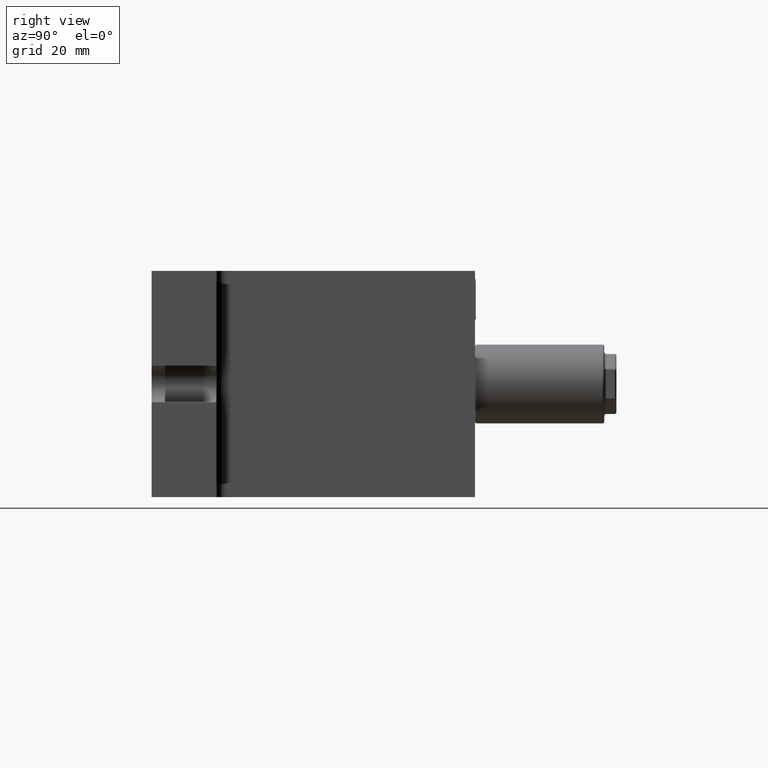
[diagram: clean part render]
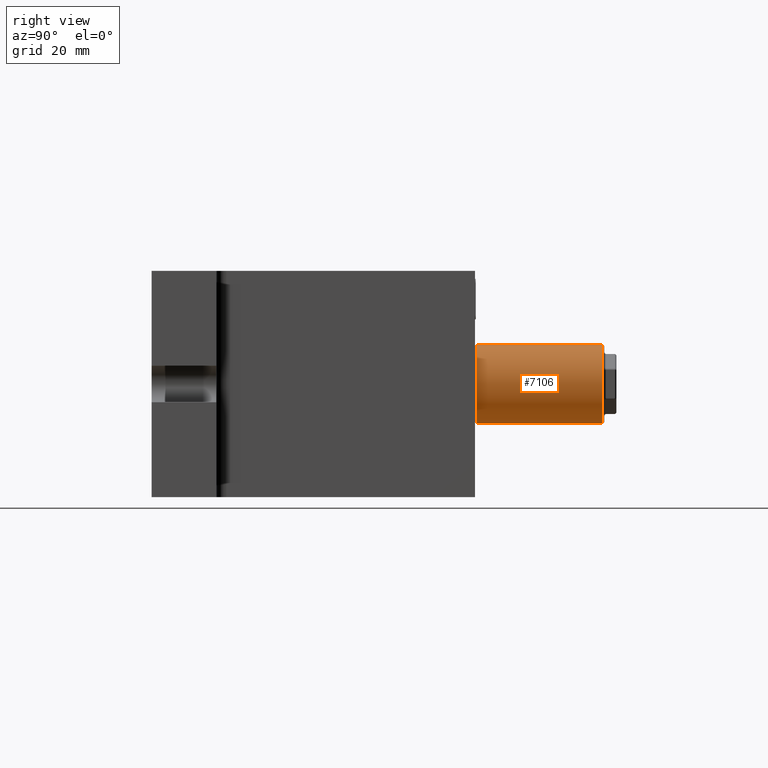
[diagram: same view with one face highlighted and labeled with its STEP entity id]
A machine part, right view. The second image highlights one B-rep face of the part: STEP entity #7106.
In plain terms, the highlighted cylindrical surface (partial cylindrical patch) has radius 9.75 mm, axis along (-0, -1, -0).
Its self-contained STEP definition (entity closure, byte-faithful):
#18 = VERTEX_POINT ( 'NONE', #2613 ) ;
#153 = DIRECTION ( 'NONE',  ( -5.959270968386779200E-017, -1.000000000000000000, -1.089523766022739900E-016 ) ) ;
#280 = EDGE_CURVE ( 'NONE', #18183, #12686, #14947, .T. ) ;
#324 = CARTESIAN_POINT ( 'NONE',  ( 25.00000000000000000, 64.00000000000000000, -9.750000000000000000 ) ) ;
#397 = CARTESIAN_POINT ( 'NONE',  ( 25.00000000000000000, 71.50000000000000000, 1.387778780781446000E-014 ) ) ;
#900 = DIRECTION ( 'NONE',  ( -5.959270968386779200E-017, -1.000000000000000000, -1.089523766022739900E-016 ) ) ;
#1024 = LINE ( 'NONE', #16780, #13079 ) ;
#1037 = AXIS2_PLACEMENT_3D ( 'NONE', #7697, #1173, #11574 ) ;
#1069 = ORIENTED_EDGE ( 'NONE', *, *, #280, .T. ) ;
#1173 = DIRECTION ( 'NONE',  ( -5.959270968386779200E-017, -1.000000000000000000, -1.089523766022739900E-016 ) ) ;
#1421 = VERTEX_POINT ( 'NONE', #8366 ) ;
#1587 = ORIENTED_EDGE ( 'NONE', *, *, #10957, .F. ) ;
#1618 = VECTOR ( 'NONE', #900, 1000.000000000000000 ) ;
#1631 = FACE_OUTER_BOUND ( 'NONE', #9160, .T. ) ;
#2253 = CARTESIAN_POINT ( 'NONE',  ( 25.00000000000000000, 58.00000000000000000, -9.750000000000000000 ) ) ;
#2419 = CARTESIAN_POINT ( 'NONE',  ( 25.00000000000000000, 72.00000000000000000, 9.750000000000014200 ) ) ;
#2516 = CARTESIAN_POINT ( 'NONE',  ( 25.00000000000000000, 48.00000000000000000, 9.750000000000000000 ) ) ;
#2613 = CARTESIAN_POINT ( 'NONE',  ( 25.00000000000000000, 48.00000000000000000, -9.750000000000000000 ) ) ;
#2877 = CARTESIAN_POINT ( 'NONE',  ( 25.00000000000000000, 66.00000000000000000, 9.750000000000000000 ) ) ;
#3560 = ORIENTED_EDGE ( 'NONE', *, *, #11059, .T. ) ;
#3569 = VECTOR ( 'NONE', #7293, 1000.000000000000000 ) ;
#3899 = VECTOR ( 'NONE', #17322, 1000.000000000000000 ) ;
#3951 = VERTEX_POINT ( 'NONE', #13352 ) ;
#4226 = VERTEX_POINT ( 'NONE', #2877 ) ;
#4452 = DIRECTION ( 'NONE',  ( -5.959270968386779200E-017, -1.000000000000000000, -1.089523766022739900E-016 ) ) ;
#4474 = CIRCLE ( 'NONE', #10943, 9.750000000000000000 ) ;
#4478 = CARTESIAN_POINT ( 'NONE',  ( 25.00000000000000000, 56.00000000000000000, -9.750000000000000000 ) ) ;
#4678 = ORIENTED_EDGE ( 'NONE', *, *, #18699, .F. ) ;
#4775 = ORIENTED_EDGE ( 'NONE', *, *, #7802, .T. ) ;
#5078 = CARTESIAN_POINT ( 'NONE',  ( 25.00000000000000000, 72.00000000000000000, 9.750000000000000000 ) ) ;
#5417 = DIRECTION ( 'NONE',  ( -5.959270968386779200E-017, -1.000000000000000000, -1.089523766022739900E-016 ) ) ;
#5484 = CARTESIAN_POINT ( 'NONE',  ( 24.99999999999999600, 72.00000000000000000, -9.749999999999985800 ) ) ;
#5502 = CARTESIAN_POINT ( 'NONE',  ( 25.00000000000000000, 64.00000000000000000, 9.750000000000000000 ) ) ;
#5519 = VECTOR ( 'NONE', #5417, 1000.000000000000000 ) ;
#5534 = ORIENTED_EDGE ( 'NONE', *, *, #19341, .T. ) ;
#5555 = VECTOR ( 'NONE', #12258, 1000.000000000000000 ) ;
#5669 = CARTESIAN_POINT ( 'NONE',  ( 24.99999999999999600, 72.00000000000000000, -9.749999999999985800 ) ) ;
#5843 = ORIENTED_EDGE ( 'NONE', *, *, #15757, .F. ) ;
#6109 = VECTOR ( 'NONE', #153, 1000.000000000000000 ) ;
#6158 = VERTEX_POINT ( 'NONE', #14401 ) ;
#6605 = LINE ( 'NONE', #20660, #5555 ) ;
#7106 = ADVANCED_FACE ( 'NONE', ( #1631 ), #17383, .T. ) ;
#7128 = VECTOR ( 'NONE', #16739, 1000.000000000000000 ) ;
#7293 = DIRECTION ( 'NONE',  ( 5.959270968386779200E-017, 1.000000000000000000, 1.089523766022739900E-016 ) ) ;
#7375 = LINE ( 'NONE', #9516, #11833 ) ;
#7697 = CARTESIAN_POINT ( 'NONE',  ( 25.00000000000000000, 72.00000000000000000, 1.387778780781446000E-014 ) ) ;
#7802 = EDGE_CURVE ( 'NONE', #12686, #8215, #7375, .T. ) ;
#8181 = EDGE_CURVE ( 'NONE', #6158, #16315, #4474, .T. ) ;
#8215 = VERTEX_POINT ( 'NONE', #2516 ) ;
#8366 = CARTESIAN_POINT ( 'NONE',  ( 25.00000000000000000, 40.50000000000000000, 9.750000000000000000 ) ) ;
#8891 = ORIENTED_EDGE ( 'NONE', *, *, #15919, .T. ) ;
#9160 = EDGE_LOOP ( 'NONE', ( #12236, #21074, #5534, #16748, #3560, #1587, #1069, #4775, #19895, #8891, #5843, #17767, #16956, #12669, #19836, #4678 ) ) ;
#9212 = AXIS2_PLACEMENT_3D ( 'NONE', #16531, #18263, #19955 ) ;
#9246 = LINE ( 'NONE', #5078, #7128 ) ;
#9516 = CARTESIAN_POINT ( 'NONE',  ( 25.00000000000000000, 72.00000000000000000, 9.750000000000000000 ) ) ;
#9564 = VERTEX_POINT ( 'NONE', #324 ) ;
#9602 = EDGE_CURVE ( 'NONE', #6158, #3951, #16109, .T. ) ;
#10310 = DIRECTION ( 'NONE',  ( -5.959270968386779200E-017, -1.000000000000000000, -1.089523766022739900E-016 ) ) ;
#10377 = DIRECTION ( 'NONE',  ( 0.0000000000000000000, 0.0000000000000000000, -1.000000000000000000 ) ) ;
#10473 = VECTOR ( 'NONE', #15539, 1000.000000000000000 ) ;
#10509 = DIRECTION ( 'NONE',  ( -5.959270968386779200E-017, -1.000000000000000000, -1.089523766022739900E-016 ) ) ;
#10516 = LINE ( 'NONE', #15474, #5519 ) ;
#10868 = VECTOR ( 'NONE', #10310, 1000.000000000000000 ) ;
#10943 = AXIS2_PLACEMENT_3D ( 'NONE', #397, #10509, #10377 ) ;
#10957 = EDGE_CURVE ( 'NONE', #18183, #17740, #9246, .T. ) ;
#11059 = EDGE_CURVE ( 'NONE', #14697, #17740, #15512, .T. ) ;
#11574 = DIRECTION ( 'NONE',  ( 0.0000000000000000000, 0.0000000000000000000, 1.000000000000000000 ) ) ;
#11833 = VECTOR ( 'NONE', #4452, 1000.000000000000000 ) ;
#12146 = LINE ( 'NONE', #20006, #6109 ) ;
#12236 = ORIENTED_EDGE ( 'NONE', *, *, #9602, .F. ) ;
#12258 = DIRECTION ( 'NONE',  ( 5.959270968386779200E-017, 1.000000000000000000, 1.089523766022739900E-016 ) ) ;
#12402 = LINE ( 'NONE', #21787, #20845 ) ;
#12669 = ORIENTED_EDGE ( 'NONE', *, *, #16469, .F. ) ;
#12686 = VERTEX_POINT ( 'NONE', #18987 ) ;
#12688 = EDGE_CURVE ( 'NONE', #14697, #4226, #6605, .T. ) ;
#12972 = EDGE_CURVE ( 'NONE', #19110, #21349, #12146, .T. ) ;
#13078 = VERTEX_POINT ( 'NONE', #2253 ) ;
#13079 = VECTOR ( 'NONE', #16861, 1000.000000000000000 ) ;
#13349 = LINE ( 'NONE', #5484, #3899 ) ;
#13352 = CARTESIAN_POINT ( 'NONE',  ( 25.00000000000000000, 66.00000000000000000, -9.750000000000000000 ) ) ;
#13589 = EDGE_CURVE ( 'NONE', #18, #21349, #17230, .T. ) ;
#13597 = CARTESIAN_POINT ( 'NONE',  ( 25.00000000000000000, 56.00000000000000000, 9.750000000000000000 ) ) ;
#14103 = CARTESIAN_POINT ( 'NONE',  ( 25.00000000000000000, 72.00000000000000000, -9.750000000000000000 ) ) ;
#14401 = CARTESIAN_POINT ( 'NONE',  ( 24.99999999999999300, 71.50000000000000000, -9.749999999999985800 ) ) ;
#14613 = CARTESIAN_POINT ( 'NONE',  ( 25.00000000000000000, 71.50000000000000000, 9.750000000000014200 ) ) ;
#14697 = VERTEX_POINT ( 'NONE', #5502 ) ;
#14947 = LINE ( 'NONE', #15677, #10473 ) ;
#15370 = DIRECTION ( 'NONE',  ( -5.959270968386779200E-017, -1.000000000000000000, -1.089523766022739900E-016 ) ) ;
#15474 = CARTESIAN_POINT ( 'NONE',  ( 25.00000000000000000, 72.00000000000000000, 9.750000000000014200 ) ) ;
#15512 = LINE ( 'NONE', #2419, #1618 ) ;
#15517 = CARTESIAN_POINT ( 'NONE',  ( 24.99999999999999300, 40.50000000000000000, -9.750000000000000000 ) ) ;
#15539 = DIRECTION ( 'NONE',  ( -5.959270968386779200E-017, -1.000000000000000000, -1.089523766022739900E-016 ) ) ;
#15677 = CARTESIAN_POINT ( 'NONE',  ( 25.00000000000000000, 72.00000000000000000, 9.750000000000014200 ) ) ;
#15757 = EDGE_CURVE ( 'NONE', #18, #19431, #20489, .T. ) ;
#15919 = EDGE_CURVE ( 'NONE', #1421, #19431, #18470, .T. ) ;
#16109 = LINE ( 'NONE', #20394, #10868 ) ;
#16273 = LINE ( 'NONE', #20010, #18662 ) ;
#16315 = VERTEX_POINT ( 'NONE', #14613 ) ;
#16469 = EDGE_CURVE ( 'NONE', #13078, #19110, #12402, .T. ) ;
#16531 = CARTESIAN_POINT ( 'NONE',  ( 25.00000000000000000, 40.50000000000000000, 0.0000000000000000000 ) ) ;
#16739 = DIRECTION ( 'NONE',  ( 5.959270968386779200E-017, 1.000000000000000000, 1.089523766022739900E-016 ) ) ;
#16748 = ORIENTED_EDGE ( 'NONE', *, *, #12688, .F. ) ;
#16780 = CARTESIAN_POINT ( 'NONE',  ( 25.00000000000000000, 72.00000000000000000, 9.750000000000014200 ) ) ;
#16861 = DIRECTION ( 'NONE',  ( -5.959270968386779200E-017, -1.000000000000000000, -1.089523766022739900E-016 ) ) ;
#16956 = ORIENTED_EDGE ( 'NONE', *, *, #12972, .F. ) ;
#17230 = LINE ( 'NONE', #14103, #3569 ) ;
#17322 = DIRECTION ( 'NONE',  ( -5.959270968386779200E-017, -1.000000000000000000, -1.089523766022739900E-016 ) ) ;
#17383 = CYLINDRICAL_SURFACE ( 'NONE', #1037, 9.750000000000000000 ) ;
#17441 = DIRECTION ( 'NONE',  ( -5.959270968386779200E-017, -1.000000000000000000, -1.089523766022739900E-016 ) ) ;
#17740 = VERTEX_POINT ( 'NONE', #18182 ) ;
#17766 = CARTESIAN_POINT ( 'NONE',  ( 25.00000000000000000, 50.00000000000000000, -9.750000000000000000 ) ) ;
#17767 = ORIENTED_EDGE ( 'NONE', *, *, #13589, .T. ) ;
#17880 = EDGE_CURVE ( 'NONE', #8215, #1421, #10516, .T. ) ;
#18182 = CARTESIAN_POINT ( 'NONE',  ( 25.00000000000000000, 58.00000000000000000, 9.750000000000000000 ) ) ;
#18183 = VERTEX_POINT ( 'NONE', #13597 ) ;
#18247 = DIRECTION ( 'NONE',  ( -5.959270968386779200E-017, -1.000000000000000000, -1.089523766022739900E-016 ) ) ;
#18263 = DIRECTION ( 'NONE',  ( 5.959270968386779200E-017, 1.000000000000000000, 1.089523766022739900E-016 ) ) ;
#18470 = CIRCLE ( 'NONE', #9212, 9.750000000000000000 ) ;
#18637 = VECTOR ( 'NONE', #17441, 1000.000000000000000 ) ;
#18662 = VECTOR ( 'NONE', #18247, 1000.000000000000000 ) ;
#18699 = EDGE_CURVE ( 'NONE', #3951, #9564, #16273, .T. ) ;
#18910 = EDGE_CURVE ( 'NONE', #9564, #13078, #13349, .T. ) ;
#18987 = CARTESIAN_POINT ( 'NONE',  ( 25.00000000000000000, 50.00000000000000000, 9.750000000000000000 ) ) ;
#19110 = VERTEX_POINT ( 'NONE', #4478 ) ;
#19341 = EDGE_CURVE ( 'NONE', #16315, #4226, #1024, .T. ) ;
#19431 = VERTEX_POINT ( 'NONE', #15517 ) ;
#19836 = ORIENTED_EDGE ( 'NONE', *, *, #18910, .F. ) ;
#19895 = ORIENTED_EDGE ( 'NONE', *, *, #17880, .T. ) ;
#19955 = DIRECTION ( 'NONE',  ( 0.0000000000000000000, 0.0000000000000000000, -1.000000000000000000 ) ) ;
#20006 = CARTESIAN_POINT ( 'NONE',  ( 24.99999999999999600, 72.00000000000000000, -9.749999999999985800 ) ) ;
#20010 = CARTESIAN_POINT ( 'NONE',  ( 25.00000000000000000, 72.00000000000000000, -9.750000000000000000 ) ) ;
#20394 = CARTESIAN_POINT ( 'NONE',  ( 24.99999999999999600, 72.00000000000000000, -9.749999999999985800 ) ) ;
#20489 = LINE ( 'NONE', #5669, #18637 ) ;
#20660 = CARTESIAN_POINT ( 'NONE',  ( 25.00000000000000000, 72.00000000000000000, 9.750000000000000000 ) ) ;
#20845 = VECTOR ( 'NONE', #15370, 1000.000000000000000 ) ;
#21074 = ORIENTED_EDGE ( 'NONE', *, *, #8181, .T. ) ;
#21349 = VERTEX_POINT ( 'NONE', #17766 ) ;
#21787 = CARTESIAN_POINT ( 'NONE',  ( 25.00000000000000000, 72.00000000000000000, -9.750000000000000000 ) ) ;